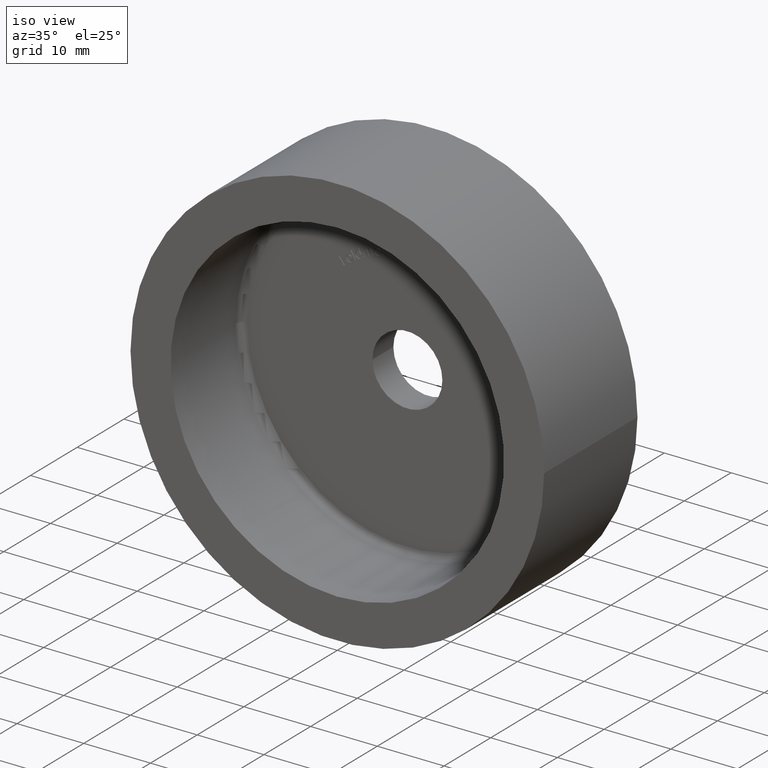
[diagram: clean part render]
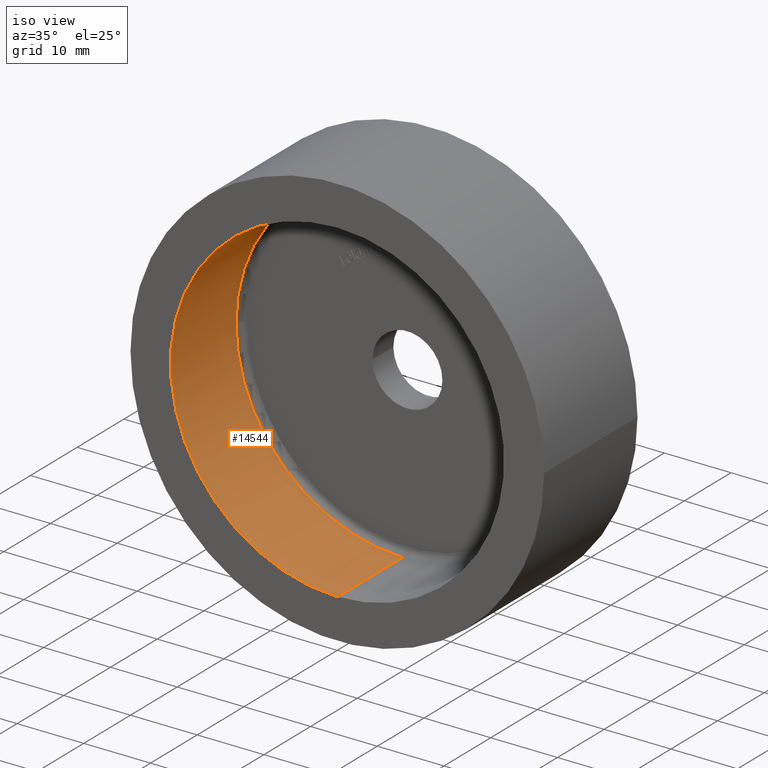
[diagram: same view with one face highlighted and labeled with its STEP entity id]
A machine part, iso view. The second image highlights one B-rep face of the part: STEP entity #14544.
In plain terms, the highlighted cylindrical surface (partial cylindrical patch) has radius 25 mm, axis along (-0, -1, -0).
Its self-contained STEP definition (entity closure, byte-faithful):
#666 = DIRECTION ( 'NONE',  ( -1.734723475976807341E-16, 1.000000000000000000, -0.000000000000000000 ) ) ;
#958 = EDGE_CURVE ( 'NONE', #11671, #11728, #12291, .T. ) ;
#1379 = AXIS2_PLACEMENT_3D ( 'NONE', #5149, #5351, #6313 ) ;
#1775 = VERTEX_POINT ( 'NONE', #8202 ) ;
#1902 = CIRCLE ( 'NONE', #7555, 25.00000000000000000 ) ;
#2144 = CARTESIAN_POINT ( 'NONE',  ( 3.061616997868383043E-15, 0.000000000000000000, 25.00000000000000000 ) ) ;
#2267 = ORIENTED_EDGE ( 'NONE', *, *, #12701, .T. ) ;
#2485 = EDGE_CURVE ( 'NONE', #1775, #11728, #14463, .T. ) ;
#2609 = CARTESIAN_POINT ( 'NONE',  ( 0.000000000000000000, 90.71067811865476926, -25.00000000000000000 ) ) ;
#2802 = CIRCLE ( 'NONE', #5654, 25.00000000000000000 ) ;
#3342 = ORIENTED_EDGE ( 'NONE', *, *, #13076, .T. ) ;
#3605 = DIRECTION ( 'NONE',  ( -1.734723475976807341E-16, 1.000000000000000000, -0.000000000000000000 ) ) ;
#3701 = CARTESIAN_POINT ( 'NONE',  ( 0.000000000000000000, 13.99999999999998401, 0.000000000000000000 ) ) ;
#4316 = AXIS2_PLACEMENT_3D ( 'NONE', #4736, #8245, #6003 ) ;
#4432 = CARTESIAN_POINT ( 'NONE',  ( -25.00000000000000000, 13.99999999999998046, 0.000000000000000000 ) ) ;
#4604 = DIRECTION ( 'NONE',  ( -0.000000000000000000, -1.000000000000000000, -0.000000000000000000 ) ) ;
#4736 = CARTESIAN_POINT ( 'NONE',  ( 0.000000000000000000, 90.71067811865476926, 0.000000000000000000 ) ) ;
#5149 = CARTESIAN_POINT ( 'NONE',  ( 0.000000000000000000, 0.000000000000000000, 0.000000000000000000 ) ) ;
#5351 = DIRECTION ( 'NONE',  ( 0.000000000000000000, -1.000000000000000000, 0.000000000000000000 ) ) ;
#5654 = AXIS2_PLACEMENT_3D ( 'NONE', #3701, #3605, #5991 ) ;
#5991 = DIRECTION ( 'NONE',  ( -1.000000000000000000, -2.081668171172168513E-16, 0.000000000000000000 ) ) ;
#6003 = DIRECTION ( 'NONE',  ( 0.000000000000000000, 0.000000000000000000, -1.000000000000000000 ) ) ;
#6313 = DIRECTION ( 'NONE',  ( 0.000000000000000000, 0.000000000000000000, -1.000000000000000000 ) ) ;
#7500 = VERTEX_POINT ( 'NONE', #10230 ) ;
#7553 = ORIENTED_EDGE ( 'NONE', *, *, #2485, .F. ) ;
#7555 = AXIS2_PLACEMENT_3D ( 'NONE', #12255, #666, #7579 ) ;
#7579 = DIRECTION ( 'NONE',  ( -1.000000000000000000, -2.081668171172168513E-16, 0.000000000000000000 ) ) ;
#7635 = VERTEX_POINT ( 'NONE', #4432 ) ;
#7811 = VECTOR ( 'NONE', #4604, 1000.000000000000000 ) ;
#8061 = CARTESIAN_POINT ( 'NONE',  ( 3.061616997868383043E-15, 90.71067811865476926, 25.00000000000000000 ) ) ;
#8202 = CARTESIAN_POINT ( 'NONE',  ( -9.027796614315169813E-31, 13.99999999999998401, -25.00000000000000000 ) ) ;
#8245 = DIRECTION ( 'NONE',  ( -0.000000000000000000, -1.000000000000000000, -0.000000000000000000 ) ) ;
#9565 = FACE_OUTER_BOUND ( 'NONE', #11070, .T. ) ;
#10074 = ORIENTED_EDGE ( 'NONE', *, *, #12106, .T. ) ;
#10230 = CARTESIAN_POINT ( 'NONE',  ( 3.061616997868382254E-15, 13.99999999999998401, 25.00000000000000000 ) ) ;
#10468 = LINE ( 'NONE', #8061, #7811 ) ;
#11070 = EDGE_LOOP ( 'NONE', ( #2267, #3342, #10074, #12129, #7553 ) ) ;
#11671 = VERTEX_POINT ( 'NONE', #2144 ) ;
#11681 = DIRECTION ( 'NONE',  ( -0.000000000000000000, -1.000000000000000000, -0.000000000000000000 ) ) ;
#11728 = VERTEX_POINT ( 'NONE', #14654 ) ;
#12106 = EDGE_CURVE ( 'NONE', #7500, #11671, #10468, .T. ) ;
#12129 = ORIENTED_EDGE ( 'NONE', *, *, #958, .T. ) ;
#12255 = CARTESIAN_POINT ( 'NONE',  ( 0.000000000000000000, 13.99999999999998401, 0.000000000000000000 ) ) ;
#12291 = CIRCLE ( 'NONE', #1379, 25.00000000000000000 ) ;
#12701 = EDGE_CURVE ( 'NONE', #1775, #7635, #2802, .T. ) ;
#13076 = EDGE_CURVE ( 'NONE', #7635, #7500, #1902, .T. ) ;
#13541 = VECTOR ( 'NONE', #11681, 1000.000000000000000 ) ;
#14463 = LINE ( 'NONE', #2609, #13541 ) ;
#14474 = CYLINDRICAL_SURFACE ( 'NONE', #4316, 25.00000000000000000 ) ;
#14544 = ADVANCED_FACE ( 'NONE', ( #9565 ), #14474, .F. ) ;
#14654 = CARTESIAN_POINT ( 'NONE',  ( 0.000000000000000000, 0.000000000000000000, -25.00000000000000000 ) ) ;